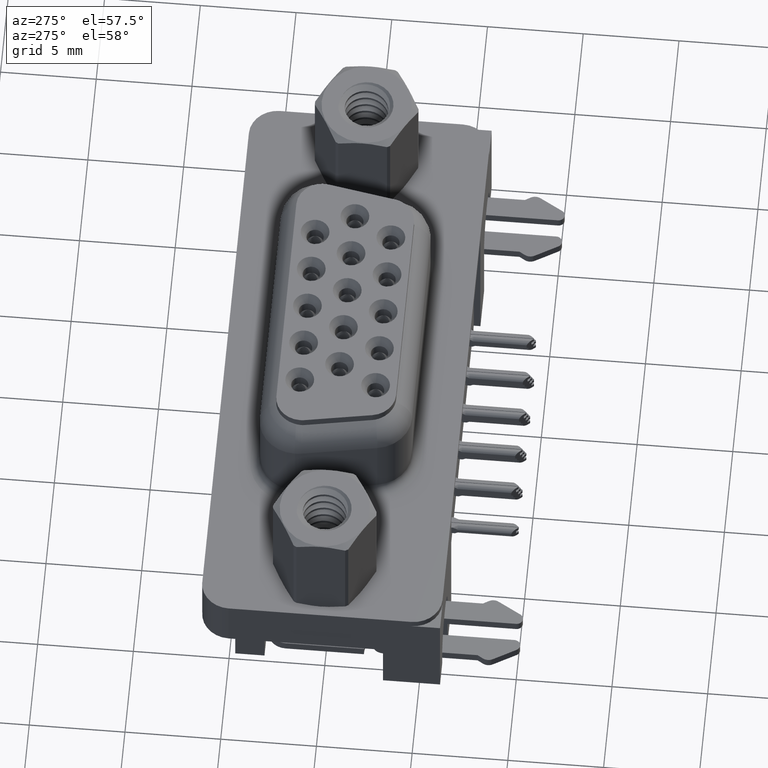
[diagram: clean part render]
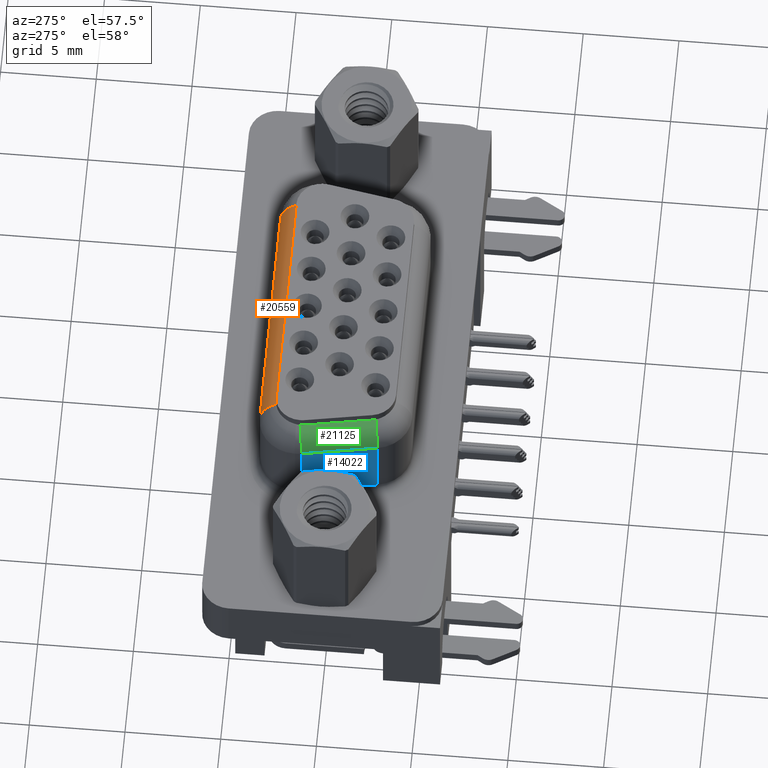
[diagram: same view with three faces highlighted in distinct colors, each labeled with its STEP entity id]
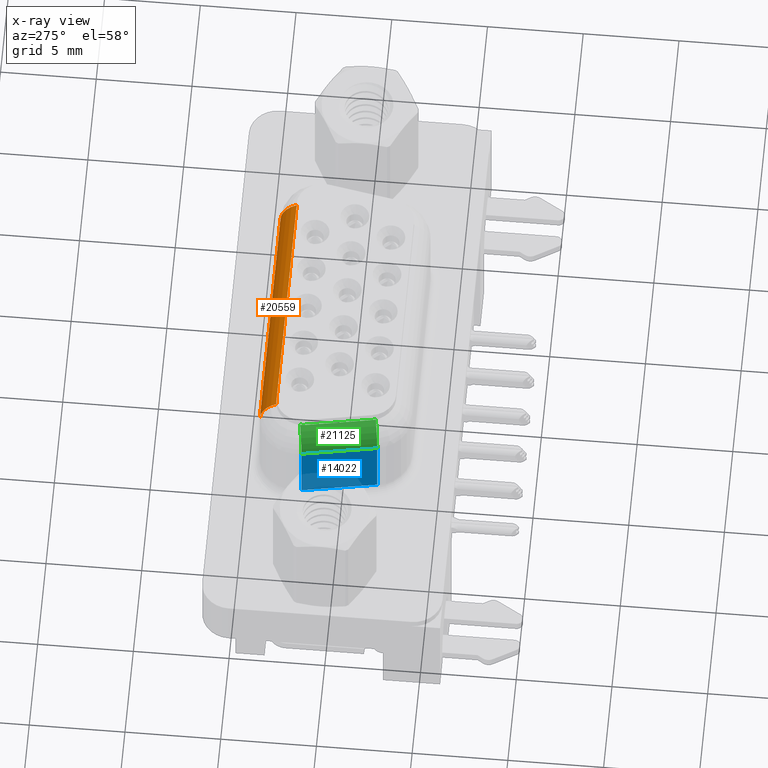
[diagram: x-ray of the same camera — body ghosted, the three highlighted faces saturated]
A machine part, auxiliary view with three faces highlighted in distinct colors.
The next image is the same camera in x-ray (body ghosted, the three faces saturated) — at least one of them is partly hidden behind the body in this view.
Their STEP definitions:

[orange] entity #20559 — the highlighted cylindrical surface (edge-blend (fillet) strip) has radius 1.75 mm, axis along (-1, 0, 0).
#890 = DIRECTION ( 'NONE',  ( -1.000000000000000000, 0.0000000000000000000, 0.0000000000000000000 ) ) ;
#1427 = B_SPLINE_CURVE_WITH_KNOTS ( 'NONE', 3,
 ( #24796, #12127, #2038, #19799 ),
 .UNSPECIFIED., .F., .F.,
 ( 4, 4 ),
 ( 0.0000000000000000000, 0.0002007484702493304900 ),
 .UNSPECIFIED. ) ;
#2005 = EDGE_LOOP ( 'NONE', ( #27007, #19711, #10754, #32223, #16072, #25041 ) ) ;
#2038 = CARTESIAN_POINT ( 'NONE',  ( 18.59382843890589500, 3.095015570034541000, 5.953854768208851000 ) ) ;
#3563 = AXIS2_PLACEMENT_3D ( 'NONE', #10013, #27880, #12569 ) ;
#3725 = VERTEX_POINT ( 'NONE', #18501 ) ;
#4364 = VERTEX_POINT ( 'NONE', #17702 ) ;
#4640 = VECTOR ( 'NONE', #14226, 1000.000000000000000 ) ;
#5431 = LINE ( 'NONE', #11637, #4640 ) ;
#5597 = CARTESIAN_POINT ( 'NONE',  ( 6.329999999999999200, 3.085102992281866900, 5.959666417806823300 ) ) ;
#6050 = LINE ( 'NONE', #15027, #19531 ) ;
#7283 = VERTEX_POINT ( 'NONE', #12276 ) ;
#8146 = CARTESIAN_POINT ( 'NONE',  ( 6.396171561094107900, 3.095015570034541400, 5.953854768208851800 ) ) ;
#9136 = AXIS2_PLACEMENT_3D ( 'NONE', #16108, #890, #18665 ) ;
#9576 = FACE_OUTER_BOUND ( 'NONE', #2005, .T. ) ;
#10013 = CARTESIAN_POINT ( 'NONE',  ( 6.330000000000000100, 2.200000000000000600, 4.450000000000000200 ) ) ;
#10146 = EDGE_CURVE ( 'NONE', #3725, #4364, #31983, .T. ) ;
#10748 = VERTEX_POINT ( 'NONE', #16319 ) ;
#10754 = ORIENTED_EDGE ( 'NONE', *, *, #10146, .T. ) ;
#11280 = DIRECTION ( 'NONE',  ( 0.0000000000000000000, 0.0000000000000000000, 1.000000000000000000 ) ) ;
#11637 = CARTESIAN_POINT ( 'NONE',  ( 17.97232477523701300, 3.099999999999998300, 5.950833101980364900 ) ) ;
#12127 = CARTESIAN_POINT ( 'NONE',  ( 18.52716658051240700, 3.099999999999998300, 5.950833101980364900 ) ) ;
#12276 = CARTESIAN_POINT ( 'NONE',  ( 18.45999999999999700, 3.099999999999998300, 5.950833101980364900 ) ) ;
#12475 = DIRECTION ( 'NONE',  ( 1.000000000000000000, -0.0000000000000000000, -0.0000000000000000000 ) ) ;
#12569 = DIRECTION ( 'NONE',  ( 0.0000000000000000000, 0.0000000000000000000, -1.000000000000000000 ) ) ;
#13059 = CIRCLE ( 'NONE', #3563, 1.749999999999999800 ) ;
#13237 = CARTESIAN_POINT ( 'NONE',  ( 6.530000000000002000, 3.099999999999999200, 5.950833101980364000 ) ) ;
#14054 = EDGE_CURVE ( 'NONE', #22446, #7283, #5431, .T. ) ;
#14226 = DIRECTION ( 'NONE',  ( 1.000000000000000000, -0.0000000000000000000, -0.0000000000000000000 ) ) ;
#15027 = CARTESIAN_POINT ( 'NONE',  ( 6.330000000000000100, 3.950000000000000200, 4.450000000000000200 ) ) ;
#15536 = EDGE_CURVE ( 'NONE', #10748, #22446, #26561, .T. ) ;
#16072 = ORIENTED_EDGE ( 'NONE', *, *, #23643, .T. ) ;
#16108 = CARTESIAN_POINT ( 'NONE',  ( 18.66000000000000400, 2.199999999999999700, 4.450000000000000200 ) ) ;
#16319 = CARTESIAN_POINT ( 'NONE',  ( 6.329999999999999200, 3.085102992281866900, 5.959666417806823300 ) ) ;
#17702 = CARTESIAN_POINT ( 'NONE',  ( 18.66000000000000400, 3.949999999999999700, 4.450000000000000200 ) ) ;
#18501 = CARTESIAN_POINT ( 'NONE',  ( 18.66000000000000400, 3.085102992281866000, 5.959666417806823300 ) ) ;
#18665 = DIRECTION ( 'NONE',  ( 0.0000000000000000000, 0.0000000000000000000, 1.000000000000000000 ) ) ;
#19531 = VECTOR ( 'NONE', #12475, 1000.000000000000000 ) ;
#19711 = ORIENTED_EDGE ( 'NONE', *, *, #24917, .T. ) ;
#19790 = EDGE_CURVE ( 'NONE', #20220, #4364, #6050, .T. ) ;
#19799 = CARTESIAN_POINT ( 'NONE',  ( 18.66000000000000400, 3.085102992281866000, 5.959666417806823300 ) ) ;
#20220 = VERTEX_POINT ( 'NONE', #29732 ) ;
#20559 = ADVANCED_FACE ( 'NONE', ( #9576 ), #29134, .T. ) ;
#22446 = VERTEX_POINT ( 'NONE', #25755 ) ;
#23643 = EDGE_CURVE ( 'NONE', #20220, #10748, #13059, .T. ) ;
#23970 = DIRECTION ( 'NONE',  ( -1.000000000000000000, 0.0000000000000000000, 0.0000000000000000000 ) ) ;
#24796 = CARTESIAN_POINT ( 'NONE',  ( 18.45999999999999700, 3.099999999999998300, 5.950833101980364900 ) ) ;
#24917 = EDGE_CURVE ( 'NONE', #7283, #3725, #1427, .T. ) ;
#25041 = ORIENTED_EDGE ( 'NONE', *, *, #15536, .T. ) ;
#25755 = CARTESIAN_POINT ( 'NONE',  ( 6.530000000000002000, 3.099999999999999200, 5.950833101980364000 ) ) ;
#26535 = CARTESIAN_POINT ( 'NONE',  ( 17.97232477523701300, 2.200000000000000600, 4.450000000000000200 ) ) ;
#26561 = B_SPLINE_CURVE_WITH_KNOTS ( 'NONE', 3,
 ( #5597, #8146, #28527, #13237 ),
 .UNSPECIFIED., .F., .F.,
 ( 4, 4 ),
 ( 0.0000000000000000000, 0.0002007484702493279400 ),
 .UNSPECIFIED. ) ;
#27007 = ORIENTED_EDGE ( 'NONE', *, *, #14054, .T. ) ;
#27421 = AXIS2_PLACEMENT_3D ( 'NONE', #26535, #23970, #11280 ) ;
#27880 = DIRECTION ( 'NONE',  ( 1.000000000000000000, 0.0000000000000000000, -0.0000000000000000000 ) ) ;
#28527 = CARTESIAN_POINT ( 'NONE',  ( 6.462833419487593800, 3.099999999999999200, 5.950833101980364000 ) ) ;
#29134 = CYLINDRICAL_SURFACE ( 'NONE', #27421, 1.749999999999999800 ) ;
#29732 = CARTESIAN_POINT ( 'NONE',  ( 6.330000000000000100, 3.950000000000000200, 4.450000000000000200 ) ) ;
#31983 = CIRCLE ( 'NONE', #9136, 1.749999999999999800 ) ;
#32223 = ORIENTED_EDGE ( 'NONE', *, *, #19790, .F. ) ;

[blue] entity #14022 — the highlighted planar face has unit normal (0.9848, 0.1736, 0).
#559 = LINE ( 'NONE', #27261, #14879 ) ;
#4006 = CARTESIAN_POINT ( 'NONE',  ( 5.048059718738568500, -2.297296355333849700, 6.200000000000000200 ) ) ;
#4316 = ORIENTED_EDGE ( 'NONE', *, *, #5345, .T. ) ;
#4537 = ORIENTED_EDGE ( 'NONE', *, *, #32876, .F. ) ;
#4721 = CARTESIAN_POINT ( 'NONE',  ( 5.048059718738568500, -2.297296355333849700, 0.8999999999999998000 ) ) ;
#5345 = EDGE_CURVE ( 'NONE', #12620, #10092, #14876, .T. ) ;
#6527 = EDGE_CURVE ( 'NONE', #10092, #9432, #559, .T. ) ;
#6573 = DIRECTION ( 'NONE',  ( -0.1736481776669238600, 0.9848077530122092400, 0.0000000000000000000 ) ) ;
#8128 = CARTESIAN_POINT ( 'NONE',  ( 4.360384493975581100, 1.602703644666152700, 4.450000000000000200 ) ) ;
#9432 = VERTEX_POINT ( 'NONE', #19170 ) ;
#10092 = VERTEX_POINT ( 'NONE', #8128 ) ;
#12613 = PLANE ( 'NONE',  #27706 ) ;
#12620 = VERTEX_POINT ( 'NONE', #26943 ) ;
#12987 = VECTOR ( 'NONE', #25051, 1000.000000000000000 ) ;
#14022 = ADVANCED_FACE ( 'NONE', ( #31782 ), #12613, .F. ) ;
#14876 = LINE ( 'NONE', #28489, #28470 ) ;
#14879 = VECTOR ( 'NONE', #32344, 1000.000000000000000 ) ;
#17471 = EDGE_CURVE ( 'NONE', #9432, #30657, #20521, .T. ) ;
#19170 = CARTESIAN_POINT ( 'NONE',  ( 4.360384493975581100, 1.602703644666152700, 0.8999999999999998000 ) ) ;
#20521 = LINE ( 'NONE', #4721, #12987 ) ;
#21731 = DIRECTION ( 'NONE',  ( 0.9848077530122092400, 0.1736481776669238600, -0.0000000000000000000 ) ) ;
#22773 = DIRECTION ( 'NONE',  ( -0.1736481776669238600, 0.9848077530122092400, -0.0000000000000000000 ) ) ;
#22965 = ORIENTED_EDGE ( 'NONE', *, *, #17471, .T. ) ;
#23170 = CARTESIAN_POINT ( 'NONE',  ( 5.048059718738568500, -2.297296355333849700, 6.200000000000000200 ) ) ;
#24199 = VECTOR ( 'NONE', #25741, 1000.000000000000000 ) ;
#25051 = DIRECTION ( 'NONE',  ( 0.1736481776669238600, -0.9848077530122092400, 0.0000000000000000000 ) ) ;
#25654 = CARTESIAN_POINT ( 'NONE',  ( 5.048059718738568500, -2.297296355333849700, 0.8999999999999998000 ) ) ;
#25741 = DIRECTION ( 'NONE',  ( -0.0000000000000000000, -0.0000000000000000000, -1.000000000000000000 ) ) ;
#26943 = CARTESIAN_POINT ( 'NONE',  ( 5.048059718738568500, -2.297296355333849700, 4.450000000000000200 ) ) ;
#27261 = CARTESIAN_POINT ( 'NONE',  ( 4.360384493975581100, 1.602703644666152700, 6.200000000000000200 ) ) ;
#27706 = AXIS2_PLACEMENT_3D ( 'NONE', #4006, #21731, #6573 ) ;
#27815 = ORIENTED_EDGE ( 'NONE', *, *, #6527, .T. ) ;
#28263 = EDGE_LOOP ( 'NONE', ( #4537, #4316, #27815, #22965 ) ) ;
#28470 = VECTOR ( 'NONE', #22773, 1000.000000000000000 ) ;
#28489 = CARTESIAN_POINT ( 'NONE',  ( 5.048059718738568500, -2.297296355333849700, 4.450000000000000200 ) ) ;
#30657 = VERTEX_POINT ( 'NONE', #25654 ) ;
#31782 = FACE_OUTER_BOUND ( 'NONE', #28263, .T. ) ;
#31881 = LINE ( 'NONE', #23170, #24199 ) ;
#32344 = DIRECTION ( 'NONE',  ( -0.0000000000000000000, -0.0000000000000000000, -1.000000000000000000 ) ) ;
#32876 = EDGE_CURVE ( 'NONE', #12620, #30657, #31881, .T. ) ;

[green] entity #21125 — the highlighted cylindrical surface (edge-blend (fillet) strip) has radius 1.75 mm, axis along (0.1736, -0.9848, 0).
#292 = ORIENTED_EDGE ( 'NONE', *, *, #29714, .T. ) ;
#348 = VERTEX_POINT ( 'NONE', #6671 ) ;
#1276 = VERTEX_POINT ( 'NONE', #17547 ) ;
#1486 = ORIENTED_EDGE ( 'NONE', *, *, #24717, .T. ) ;
#1588 = DIRECTION ( 'NONE',  ( 0.9848077530122091300, 0.1736481776669237500, 0.0000000000000000000 ) ) ;
#1602 = CARTESIAN_POINT ( 'NONE',  ( 5.180162373774747300, 1.669634689808885400, 5.931851260962047500 ) ) ;
#2642 = DIRECTION ( 'NONE',  ( -0.1736481776669238600, 0.9848077530122092400, -0.0000000000000000000 ) ) ;
#2900 = EDGE_CURVE ( 'NONE', #10092, #32799, #3448, .T. ) ;
#3448 = CIRCLE ( 'NONE', #8335, 1.750000000000000400 ) ;
#3506 = CARTESIAN_POINT ( 'NONE',  ( 6.771473286509935200, -1.993412044416732900, 4.450000000000000200 ) ) ;
#3812 = CARTESIAN_POINT ( 'NONE',  ( 5.841640549381463800, -2.098654028346358800, 5.929951803701018600 ) ) ;
#4139 = CARTESIAN_POINT ( 'NONE',  ( 7.101796388808866200, -3.866767449084464600, 4.450000000000000200 ) ) ;
#5091 = CARTESIAN_POINT ( 'NONE',  ( 5.180002853165053300, 1.747224475275252800, 5.940052852112477100 ) ) ;
#5345 = EDGE_CURVE ( 'NONE', #12620, #10092, #14876, .T. ) ;
#6085 = DIRECTION ( 'NONE',  ( -0.9848077530122091300, -0.1736481776669237500, 0.0000000000000000000 ) ) ;
#6671 = CARTESIAN_POINT ( 'NONE',  ( 5.817653965913122800, -1.984425039850348500, 5.927528686315415700 ) ) ;
#7342 = B_SPLINE_CURVE_WITH_KNOTS ( 'NONE', 3,
 ( #11355, #3812, #24149, #8932 ),
 .UNSPECIFIED., .F., .F.,
 ( 4, 4 ),
 ( 0.0000000000000000000, 0.0001749916055301498600 ),
 .UNSPECIFIED. ) ;
#8128 = CARTESIAN_POINT ( 'NONE',  ( 4.360384493975581100, 1.602703644666152700, 4.450000000000000200 ) ) ;
#8335 = AXIS2_PLACEMENT_3D ( 'NONE', #26681, #26595, #21897 ) ;
#8778 = EDGE_CURVE ( 'NONE', #1276, #32799, #30767, .T. ) ;
#8830 = CARTESIAN_POINT ( 'NONE',  ( 5.859102686853968400, -2.154287597541234800, 5.934654486838705400 ) ) ;
#8932 = CARTESIAN_POINT ( 'NONE',  ( 5.817653965913122800, -1.984425039850348500, 5.927528686315415700 ) ) ;
#10092 = VERTEX_POINT ( 'NONE', #8128 ) ;
#11355 = CARTESIAN_POINT ( 'NONE',  ( 5.859102686853968400, -2.154287597541234800, 5.934654486838705400 ) ) ;
#12530 = VERTEX_POINT ( 'NONE', #8830 ) ;
#12620 = VERTEX_POINT ( 'NONE', #26943 ) ;
#14876 = LINE ( 'NONE', #28489, #28470 ) ;
#16851 = CARTESIAN_POINT ( 'NONE',  ( 5.186959194835677200, 1.592422749089261700, 5.927528686315416600 ) ) ;
#17547 = CARTESIAN_POINT ( 'NONE',  ( 5.200509533433519800, 1.515574960149652200, 5.927528686315415700 ) ) ;
#17915 = FACE_OUTER_BOUND ( 'NONE', #30064, .T. ) ;
#18351 = LINE ( 'NONE', #28059, #31190 ) ;
#18853 = ORIENTED_EDGE ( 'NONE', *, *, #31009, .T. ) ;
#19257 = AXIS2_PLACEMENT_3D ( 'NONE', #4139, #29660, #1588 ) ;
#19373 = CARTESIAN_POINT ( 'NONE',  ( 5.180002853165053300, 1.747224475275252800, 5.940052852112477100 ) ) ;
#20672 = ORIENTED_EDGE ( 'NONE', *, *, #2900, .F. ) ;
#21125 = ADVANCED_FACE ( 'NONE', ( #17915 ), #30734, .T. ) ;
#21254 = DIRECTION ( 'NONE',  ( -0.1736481776669237500, 0.9848077530122092400, 0.0000000000000000000 ) ) ;
#21897 = DIRECTION ( 'NONE',  ( -0.9848077530122091300, -0.1736481776669238900, 0.0000000000000000000 ) ) ;
#22773 = DIRECTION ( 'NONE',  ( -0.1736481776669238600, 0.9848077530122092400, -0.0000000000000000000 ) ) ;
#23559 = CIRCLE ( 'NONE', #28671, 1.750000000000000400 ) ;
#24149 = CARTESIAN_POINT ( 'NONE',  ( 5.827812688523130700, -2.042038018699035900, 5.927528686315415700 ) ) ;
#24717 = EDGE_CURVE ( 'NONE', #12530, #348, #7342, .T. ) ;
#26595 = DIRECTION ( 'NONE',  ( -0.1736481776669238600, 0.9848077530122092400, -5.010595960007046200E-017 ) ) ;
#26681 = CARTESIAN_POINT ( 'NONE',  ( 6.083798061746947800, 1.906587955583269700, 4.450000000000000200 ) ) ;
#26943 = CARTESIAN_POINT ( 'NONE',  ( 5.048059718738568500, -2.297296355333849700, 4.450000000000000200 ) ) ;
#28059 = CARTESIAN_POINT ( 'NONE',  ( 6.178275108241464900, -4.029609168106923700, 5.927528686315415700 ) ) ;
#28470 = VECTOR ( 'NONE', #22773, 1000.000000000000000 ) ;
#28489 = CARTESIAN_POINT ( 'NONE',  ( 5.048059718738568500, -2.297296355333849700, 4.450000000000000200 ) ) ;
#28671 = AXIS2_PLACEMENT_3D ( 'NONE', #3506, #21254, #6085 ) ;
#29568 = ORIENTED_EDGE ( 'NONE', *, *, #5345, .F. ) ;
#29660 = DIRECTION ( 'NONE',  ( 0.1736481776669238600, -0.9848077530122092400, 0.0000000000000000000 ) ) ;
#29714 = EDGE_CURVE ( 'NONE', #12620, #12530, #23559, .T. ) ;
#30064 = EDGE_LOOP ( 'NONE', ( #18853, #31330, #20672, #29568, #292, #1486 ) ) ;
#30734 = CYLINDRICAL_SURFACE ( 'NONE', #19257, 1.750000000000000400 ) ;
#30767 = B_SPLINE_CURVE_WITH_KNOTS ( 'NONE', 3,
 ( #32160, #16851, #1602, #19373 ),
 .UNSPECIFIED., .F., .F.,
 ( 4, 4 ),
 ( 0.0000000000000000000, 0.0002328924140509331100 ),
 .UNSPECIFIED. ) ;
#31009 = EDGE_CURVE ( 'NONE', #348, #1276, #18351, .T. ) ;
#31190 = VECTOR ( 'NONE', #2642, 1000.000000000000000 ) ;
#31330 = ORIENTED_EDGE ( 'NONE', *, *, #8778, .T. ) ;
#32160 = CARTESIAN_POINT ( 'NONE',  ( 5.200509533433519800, 1.515574960149652200, 5.927528686315415700 ) ) ;
#32799 = VERTEX_POINT ( 'NONE', #5091 ) ;